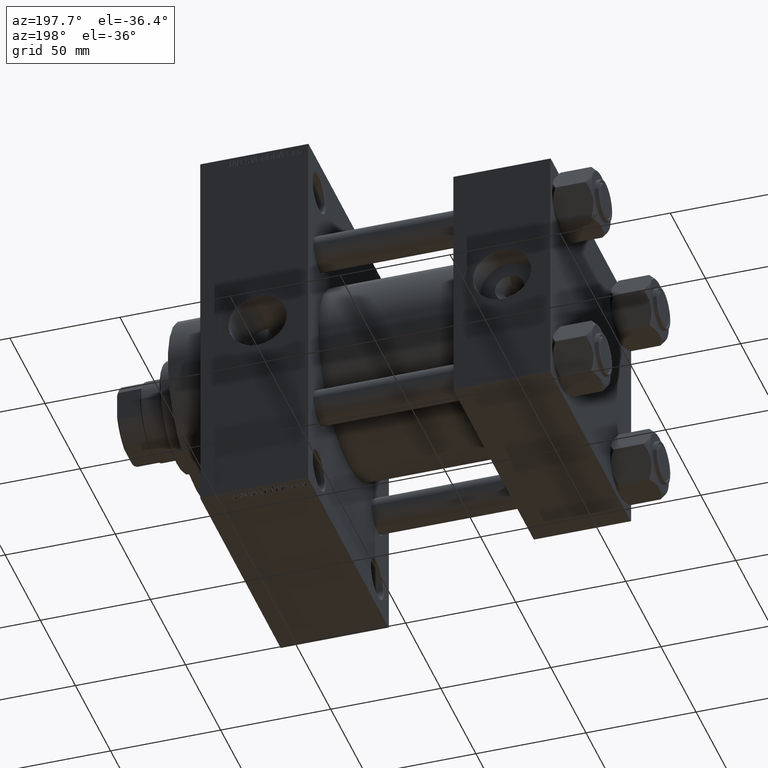
[diagram: clean part render]
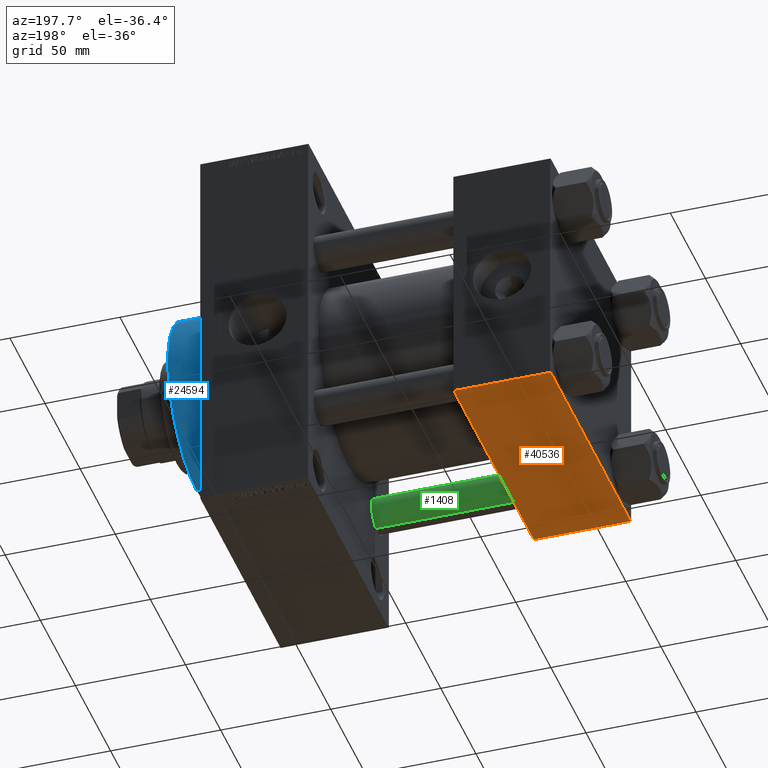
[diagram: same view with three faces highlighted in distinct colors, each labeled with its STEP entity id]
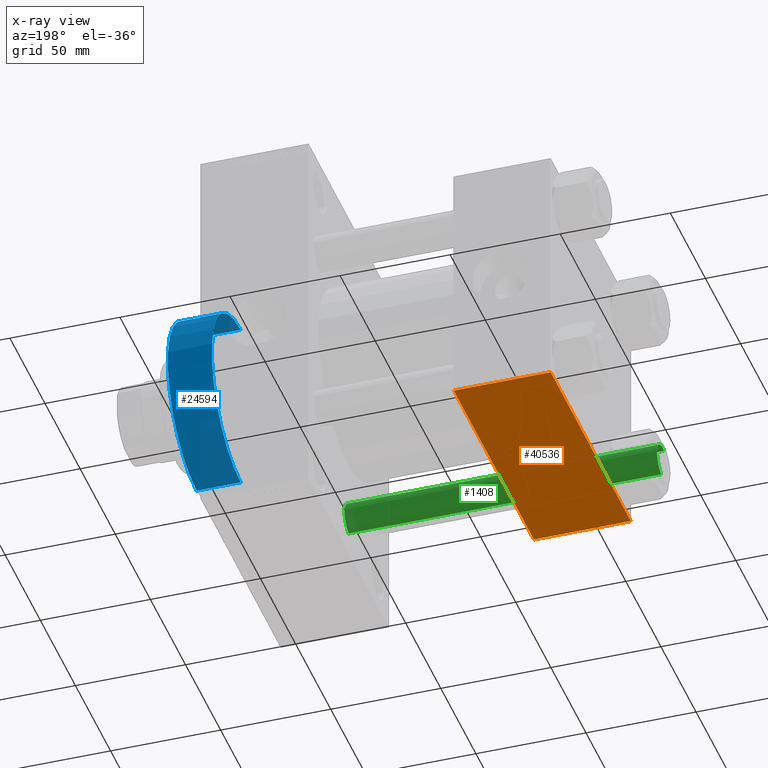
[diagram: x-ray of the same camera — body ghosted, the three highlighted faces saturated]
A machine part, auxiliary view with three faces highlighted in distinct colors.
The next image is the same camera in x-ray (body ghosted, the three faces saturated) — at least one of them is partly hidden behind the body in this view.
Their STEP definitions:

[orange] entity #40536 — the highlighted planar face has unit normal (0, 0, -1).
#688 = DIRECTION ( 'NONE',  ( -1.000000000000000000, 0.000000000000000000, 0.000000000000000000 ) ) ;
#1121 = CARTESIAN_POINT ( 'NONE',  ( 44.00000000000000000, 57.49999999999999289, -57.49999999999999289 ) ) ;
#2991 = CARTESIAN_POINT ( 'NONE',  ( 44.00000000000000000, 57.49999999999999289, -57.49999999999999289 ) ) ;
#4526 = VECTOR ( 'NONE', #10031, 1000.000000000000000 ) ;
#6771 = CARTESIAN_POINT ( 'NONE',  ( 0.000000000000000000, 57.49999999999999289, -57.49999999999999289 ) ) ;
#10031 = DIRECTION ( 'NONE',  ( 0.000000000000000000, -1.000000000000000000, -1.206764157201257045E-16 ) ) ;
#11737 = EDGE_CURVE ( 'NONE', #45599, #40576, #40502, .T. ) ;
#11868 = VECTOR ( 'NONE', #688, 1000.000000000000000 ) ;
#12633 = ORIENTED_EDGE ( 'NONE', *, *, #35402, .F. ) ;
#13430 = ORIENTED_EDGE ( 'NONE', *, *, #45737, .T. ) ;
#14277 = CARTESIAN_POINT ( 'NONE',  ( 44.00000000000000000, 57.00000000000002132, -57.49999999999999289 ) ) ;
#14725 = ORIENTED_EDGE ( 'NONE', *, *, #11737, .T. ) ;
#17691 = CARTESIAN_POINT ( 'NONE',  ( 0.000000000000000000, 57.00000000000002132, -57.49999999999999289 ) ) ;
#18860 = LINE ( 'NONE', #29955, #18887 ) ;
#18887 = VECTOR ( 'NONE', #40772, 1000.000000000000000 ) ;
#21871 = LINE ( 'NONE', #6771, #34526 ) ;
#22117 = DIRECTION ( 'NONE',  ( 0.000000000000000000, -1.000000000000000000, -1.206764157201257045E-16 ) ) ;
#23281 = DIRECTION ( 'NONE',  ( 0.000000000000000000, 1.206764157201257045E-16, -1.000000000000000000 ) ) ;
#23531 = PLANE ( 'NONE',  #38370 ) ;
#24009 = EDGE_CURVE ( 'NONE', #28288, #45599, #18860, .T. ) ;
#27314 = CARTESIAN_POINT ( 'NONE',  ( 44.00000000000000000, -57.00000000000000711, -57.50000000000000711 ) ) ;
#28288 = VERTEX_POINT ( 'NONE', #17691 ) ;
#29955 = CARTESIAN_POINT ( 'NONE',  ( 44.00000000000000000, 57.00000000000002132, -57.49999999999999289 ) ) ;
#34526 = VECTOR ( 'NONE', #22117, 1000.000000000000000 ) ;
#35171 = CARTESIAN_POINT ( 'NONE',  ( 0.000000000000000000, -57.00000000000000711, -57.50000000000000711 ) ) ;
#35370 = DIRECTION ( 'NONE',  ( 0.000000000000000000, 1.000000000000000000, 1.206764157201257045E-16 ) ) ;
#35402 = EDGE_CURVE ( 'NONE', #28288, #39789, #21871, .T. ) ;
#38370 = AXIS2_PLACEMENT_3D ( 'NONE', #1121, #23281, #35370 ) ;
#39789 = VERTEX_POINT ( 'NONE', #47657 ) ;
#40502 = LINE ( 'NONE', #2991, #4526 ) ;
#40536 = ADVANCED_FACE ( 'NONE', ( #42404 ), #23531, .T. ) ;
#40576 = VERTEX_POINT ( 'NONE', #27314 ) ;
#40772 = DIRECTION ( 'NONE',  ( 1.000000000000000000, 0.000000000000000000, 0.000000000000000000 ) ) ;
#42404 = FACE_OUTER_BOUND ( 'NONE', #46001, .T. ) ;
#43463 = LINE ( 'NONE', #35171, #11868 ) ;
#45599 = VERTEX_POINT ( 'NONE', #14277 ) ;
#45737 = EDGE_CURVE ( 'NONE', #40576, #39789, #43463, .T. ) ;
#46001 = EDGE_LOOP ( 'NONE', ( #12633, #46398, #14725, #13430 ) ) ;
#46398 = ORIENTED_EDGE ( 'NONE', *, *, #24009, .T. ) ;
#47657 = CARTESIAN_POINT ( 'NONE',  ( 0.000000000000000000, -57.00000000000000711, -57.50000000000000711 ) ) ;

[blue] entity #24594 — the highlighted cylindrical surface (partial cylindrical patch) has radius 41 mm, axis along (-1, -0, -0).
#456 = AXIS2_PLACEMENT_3D ( 'NONE', #35652, #1164, #28349 ) ;
#1164 = DIRECTION ( 'NONE',  ( -1.000000000000000000, -0.000000000000000000, -0.000000000000000000 ) ) ;
#1538 = DIRECTION ( 'NONE',  ( -1.000000000000000000, -0.000000000000000000, -0.000000000000000000 ) ) ;
#1631 = CARTESIAN_POINT ( 'NONE',  ( 179.0000000000000000, 5.021051876504148963E-15, -41.00000000000000000 ) ) ;
#3461 = CARTESIAN_POINT ( 'NONE',  ( 159.0000000000000000, 0.000000000000000000, 41.00000000000000000 ) ) ;
#4963 = ORIENTED_EDGE ( 'NONE', *, *, #9401, .T. ) ;
#7932 = VECTOR ( 'NONE', #1538, 1000.000000000000000 ) ;
#9320 = LINE ( 'NONE', #27732, #7932 ) ;
#9352 = AXIS2_PLACEMENT_3D ( 'NONE', #12254, #20086, #44394 ) ;
#9401 = EDGE_CURVE ( 'NONE', #13941, #17611, #12460, .T. ) ;
#12254 = CARTESIAN_POINT ( 'NONE',  ( 159.0000000000000000, 0.000000000000000000, 0.000000000000000000 ) ) ;
#12460 = LINE ( 'NONE', #42687, #14968 ) ;
#13786 = DIRECTION ( 'NONE',  ( 1.000000000000000000, 0.000000000000000000, 0.000000000000000000 ) ) ;
#13941 = VERTEX_POINT ( 'NONE', #1631 ) ;
#14898 = EDGE_LOOP ( 'NONE', ( #18269, #4963, #47276, #28603 ) ) ;
#14968 = VECTOR ( 'NONE', #42439, 1000.000000000000000 ) ;
#17611 = VERTEX_POINT ( 'NONE', #23086 ) ;
#18269 = ORIENTED_EDGE ( 'NONE', *, *, #34595, .F. ) ;
#20086 = DIRECTION ( 'NONE',  ( 1.000000000000000000, 0.000000000000000000, 0.000000000000000000 ) ) ;
#20787 = FACE_OUTER_BOUND ( 'NONE', #14898, .T. ) ;
#21614 = DIRECTION ( 'NONE',  ( 0.000000000000000000, 0.000000000000000000, -1.000000000000000000 ) ) ;
#23086 = CARTESIAN_POINT ( 'NONE',  ( 159.0000000000000000, 5.021051876504148963E-15, -41.00000000000000000 ) ) ;
#24594 = ADVANCED_FACE ( 'NONE', ( #20787 ), #43691, .T. ) ;
#27237 = AXIS2_PLACEMENT_3D ( 'NONE', #43536, #13786, #21614 ) ;
#27732 = CARTESIAN_POINT ( 'NONE',  ( 179.0000000000000000, 0.000000000000000000, 41.00000000000000000 ) ) ;
#28349 = DIRECTION ( 'NONE',  ( 0.000000000000000000, 0.000000000000000000, 1.000000000000000000 ) ) ;
#28603 = ORIENTED_EDGE ( 'NONE', *, *, #43869, .F. ) ;
#29262 = VERTEX_POINT ( 'NONE', #37277 ) ;
#29893 = EDGE_CURVE ( 'NONE', #17611, #40195, #38291, .T. ) ;
#34595 = EDGE_CURVE ( 'NONE', #13941, #29262, #49743, .T. ) ;
#35652 = CARTESIAN_POINT ( 'NONE',  ( 179.0000000000000000, 0.000000000000000000, 0.000000000000000000 ) ) ;
#37277 = CARTESIAN_POINT ( 'NONE',  ( 179.0000000000000000, 0.000000000000000000, 41.00000000000000000 ) ) ;
#38291 = CIRCLE ( 'NONE', #9352, 41.00000000000000000 ) ;
#40195 = VERTEX_POINT ( 'NONE', #3461 ) ;
#42439 = DIRECTION ( 'NONE',  ( -1.000000000000000000, -0.000000000000000000, -0.000000000000000000 ) ) ;
#42687 = CARTESIAN_POINT ( 'NONE',  ( 179.0000000000000000, 5.021051876504148963E-15, -41.00000000000000000 ) ) ;
#43536 = CARTESIAN_POINT ( 'NONE',  ( 179.0000000000000000, 0.000000000000000000, 0.000000000000000000 ) ) ;
#43691 = CYLINDRICAL_SURFACE ( 'NONE', #456, 41.00000000000000000 ) ;
#43869 = EDGE_CURVE ( 'NONE', #29262, #40195, #9320, .T. ) ;
#44394 = DIRECTION ( 'NONE',  ( 0.000000000000000000, 0.000000000000000000, -1.000000000000000000 ) ) ;
#47276 = ORIENTED_EDGE ( 'NONE', *, *, #29893, .T. ) ;
#49743 = CIRCLE ( 'NONE', #27237, 41.00000000000000000 ) ;

[green] entity #1408 — the highlighted cylindrical surface (edge-blend (fillet) strip) has radius 8 mm, axis along (-1, 0, 0).
#535 = LINE ( 'NONE', #38805, #9212 ) ;
#542 = ORIENTED_EDGE ( 'NONE', *, *, #8073, .T. ) ;
#1010 = VERTEX_POINT ( 'NONE', #32854 ) ;
#1095 = CARTESIAN_POINT ( 'NONE',  ( 8.000000000000000000, 9.797174393178825657E-16, 0.4999999999999726885 ) ) ;
#1408 = ADVANCED_FACE ( 'NONE', ( #10567 ), #38504, .T. ) ;
#3510 = DIRECTION ( 'NONE',  ( -0.000000000000000000, -0.000000000000000000, -1.000000000000000000 ) ) ;
#3989 = DIRECTION ( 'NONE',  ( -0.000000000000000000, -0.000000000000000000, 1.000000000000000000 ) ) ;
#4430 = ORIENTED_EDGE ( 'NONE', *, *, #8292, .F. ) ;
#4450 = AXIS2_PLACEMENT_3D ( 'NONE', #41275, #3510, #37510 ) ;
#6029 = EDGE_CURVE ( 'NONE', #39193, #33587, #13897, .T. ) ;
#8073 = EDGE_CURVE ( 'NONE', #39336, #39193, #535, .T. ) ;
#8292 = EDGE_CURVE ( 'NONE', #1010, #33587, #22326, .T. ) ;
#8370 = ORIENTED_EDGE ( 'NONE', *, *, #6029, .T. ) ;
#9212 = VECTOR ( 'NONE', #28647, 1000.000000000000000 ) ;
#10567 = FACE_OUTER_BOUND ( 'NONE', #48674, .T. ) ;
#11002 = CIRCLE ( 'NONE', #39163, 8.000000000000000000 ) ;
#11025 = CARTESIAN_POINT ( 'NONE',  ( 0.000000000000000000, 0.000000000000000000, 0.4999999999999726885 ) ) ;
#11042 = CARTESIAN_POINT ( 'NONE',  ( 0.000000000000000000, 0.000000000000000000, 142.4999999999999716 ) ) ;
#13897 = CIRCLE ( 'NONE', #23598, 8.000000000000000000 ) ;
#22326 = LINE ( 'NONE', #30378, #46193 ) ;
#23598 = AXIS2_PLACEMENT_3D ( 'NONE', #11025, #3989, #41986 ) ;
#28647 = DIRECTION ( 'NONE',  ( -0.000000000000000000, -0.000000000000000000, -1.000000000000000000 ) ) ;
#30378 = CARTESIAN_POINT ( 'NONE',  ( 8.000000000000000000, 9.797174393178825657E-16, 143.0000000000000000 ) ) ;
#31418 = EDGE_CURVE ( 'NONE', #1010, #39336, #11002, .T. ) ;
#32854 = CARTESIAN_POINT ( 'NONE',  ( 8.000000000000000000, 9.797174393178825657E-16, 142.4999999999999716 ) ) ;
#33587 = VERTEX_POINT ( 'NONE', #1095 ) ;
#33968 = DIRECTION ( 'NONE',  ( 1.000000000000000000, 0.000000000000000000, 0.000000000000000000 ) ) ;
#34650 = DIRECTION ( 'NONE',  ( -0.000000000000000000, -0.000000000000000000, -1.000000000000000000 ) ) ;
#37494 = DIRECTION ( 'NONE',  ( 0.000000000000000000, 0.000000000000000000, -1.000000000000000000 ) ) ;
#37510 = DIRECTION ( 'NONE',  ( -1.000000000000000000, 0.000000000000000000, 0.000000000000000000 ) ) ;
#38504 = CYLINDRICAL_SURFACE ( 'NONE', #4450, 8.000000000000000000 ) ;
#38805 = CARTESIAN_POINT ( 'NONE',  ( -8.000000000000000000, 0.000000000000000000, 143.0000000000000000 ) ) ;
#39163 = AXIS2_PLACEMENT_3D ( 'NONE', #11042, #37494, #33968 ) ;
#39193 = VERTEX_POINT ( 'NONE', #39740 ) ;
#39336 = VERTEX_POINT ( 'NONE', #42205 ) ;
#39740 = CARTESIAN_POINT ( 'NONE',  ( -8.000000000000000000, 0.000000000000000000, 0.4999999999999726885 ) ) ;
#41275 = CARTESIAN_POINT ( 'NONE',  ( 0.000000000000000000, 0.000000000000000000, 143.0000000000000000 ) ) ;
#41986 = DIRECTION ( 'NONE',  ( 1.000000000000000000, 0.000000000000000000, 0.000000000000000000 ) ) ;
#42205 = CARTESIAN_POINT ( 'NONE',  ( -8.000000000000000000, 0.000000000000000000, 142.4999999999999716 ) ) ;
#46193 = VECTOR ( 'NONE', #34650, 1000.000000000000000 ) ;
#46610 = ORIENTED_EDGE ( 'NONE', *, *, #31418, .T. ) ;
#48674 = EDGE_LOOP ( 'NONE', ( #4430, #46610, #542, #8370 ) ) ;